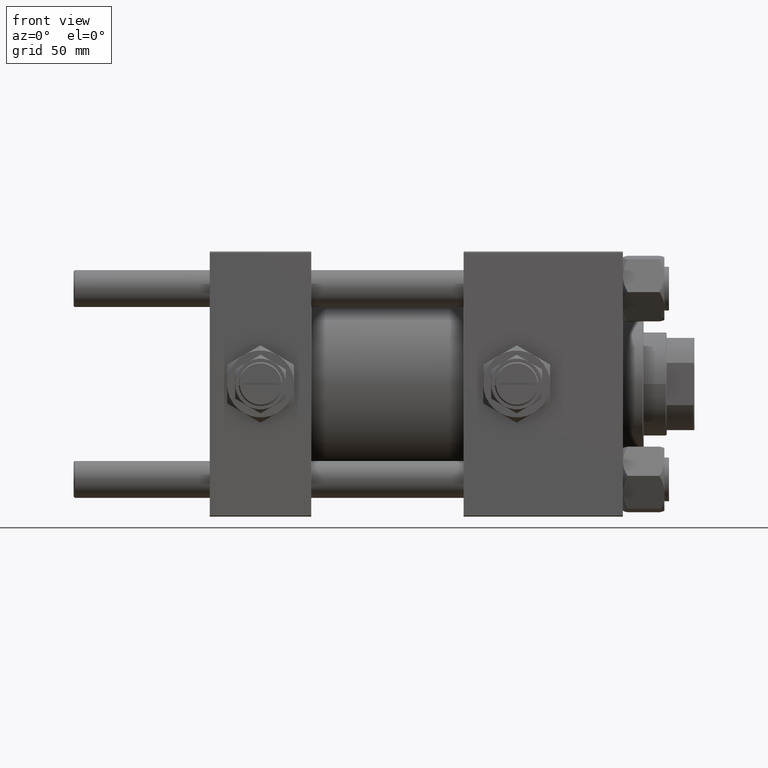
[diagram: clean part render]
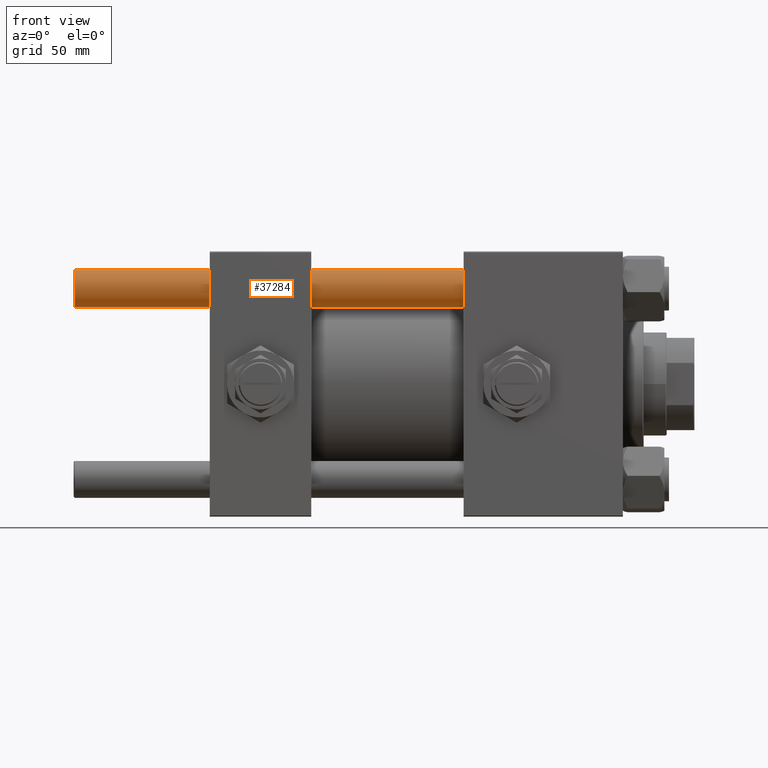
[diagram: same view with one face highlighted and labeled with its STEP entity id]
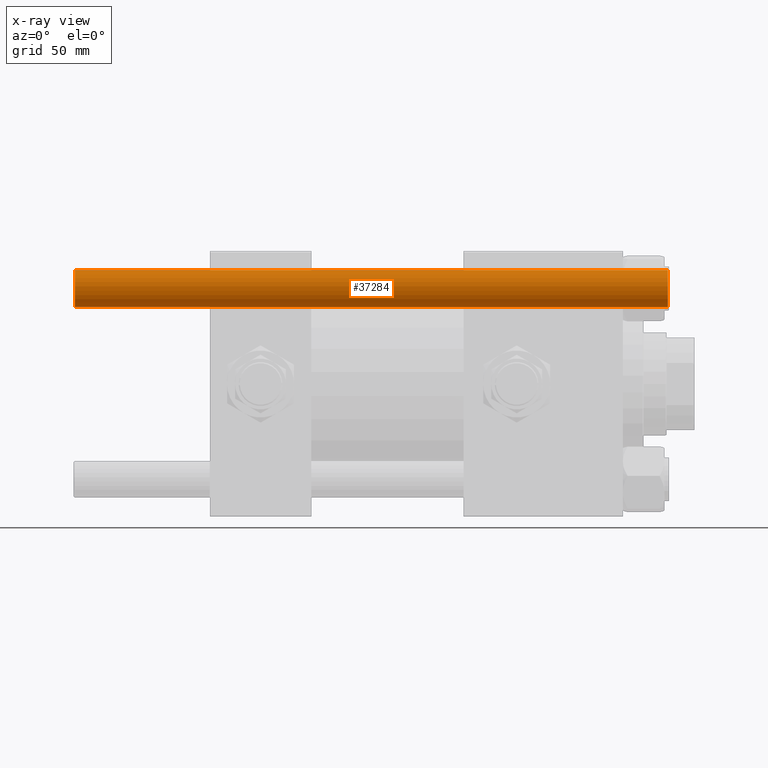
[diagram: x-ray of the same camera — body ghosted, the highlighted face saturated]
A machine part, front view. The second image highlights one B-rep face of the part: STEP entity #37284.
The next image is the same camera in x-ray: the body ghosted, the highlighted face saturated — about 0% of this face is hidden behind the body in this view.
In plain terms, the highlighted cylindrical surface (edge-blend (fillet) strip) has radius 8 mm, axis along (1, -0, 0).
Its self-contained STEP definition (entity closure, byte-faithful):
#51 = CARTESIAN_POINT ( 'NONE',  ( 8.000000000000000000, 9.797174393178825657E-16, 258.0000000000000000 ) ) ;
#449 = VERTEX_POINT ( 'NONE', #1011 ) ;
#679 = CIRCLE ( 'NONE', #45518, 8.000000000000000000 ) ;
#1011 = CARTESIAN_POINT ( 'NONE',  ( -8.000000000000000000, 0.000000000000000000, 0.4999999999999449329 ) ) ;
#3984 = DIRECTION ( 'NONE',  ( 0.000000000000000000, 0.000000000000000000, -1.000000000000000000 ) ) ;
#4682 = CIRCLE ( 'NONE', #39408, 8.000000000000000000 ) ;
#6852 = DIRECTION ( 'NONE',  ( 1.000000000000000000, 0.000000000000000000, 0.000000000000000000 ) ) ;
#8347 = VERTEX_POINT ( 'NONE', #30418 ) ;
#9004 = CARTESIAN_POINT ( 'NONE',  ( 0.000000000000000000, 0.000000000000000000, 257.4999999999999432 ) ) ;
#9964 = AXIS2_PLACEMENT_3D ( 'NONE', #49589, #50103, #20963 ) ;
#11445 = DIRECTION ( 'NONE',  ( -0.000000000000000000, -0.000000000000000000, -1.000000000000000000 ) ) ;
#12499 = LINE ( 'NONE', #51, #35887 ) ;
#18372 = LINE ( 'NONE', #34539, #29222 ) ;
#20963 = DIRECTION ( 'NONE',  ( -1.000000000000000000, 0.000000000000000000, 0.000000000000000000 ) ) ;
#25037 = EDGE_LOOP ( 'NONE', ( #35180, #36513, #44146, #30346 ) ) ;
#27449 = VERTEX_POINT ( 'NONE', #49198 ) ;
#29222 = VECTOR ( 'NONE', #50708, 1000.000000000000000 ) ;
#29332 = EDGE_CURVE ( 'NONE', #8347, #27449, #12499, .T. ) ;
#30346 = ORIENTED_EDGE ( 'NONE', *, *, #49715, .F. ) ;
#30418 = CARTESIAN_POINT ( 'NONE',  ( 8.000000000000000000, 9.797174393178825657E-16, 257.4999999999999432 ) ) ;
#31851 = EDGE_CURVE ( 'NONE', #27449, #449, #4682, .T. ) ;
#33806 = VERTEX_POINT ( 'NONE', #41697 ) ;
#34539 = CARTESIAN_POINT ( 'NONE',  ( -8.000000000000000000, 0.000000000000000000, 258.0000000000000000 ) ) ;
#35180 = ORIENTED_EDGE ( 'NONE', *, *, #38019, .T. ) ;
#35887 = VECTOR ( 'NONE', #11445, 1000.000000000000000 ) ;
#36272 = CARTESIAN_POINT ( 'NONE',  ( 0.000000000000000000, 0.000000000000000000, 0.4999999999999449329 ) ) ;
#36513 = ORIENTED_EDGE ( 'NONE', *, *, #29332, .T. ) ;
#37284 = ADVANCED_FACE ( 'NONE', ( #46135 ), #41127, .T. ) ;
#38019 = EDGE_CURVE ( 'NONE', #33806, #8347, #679, .T. ) ;
#39408 = AXIS2_PLACEMENT_3D ( 'NONE', #36272, #48209, #6852 ) ;
#41127 = CYLINDRICAL_SURFACE ( 'NONE', #9964, 8.000000000000000000 ) ;
#41357 = DIRECTION ( 'NONE',  ( 1.000000000000000000, 0.000000000000000000, 0.000000000000000000 ) ) ;
#41697 = CARTESIAN_POINT ( 'NONE',  ( -8.000000000000000000, 0.000000000000000000, 257.4999999999999432 ) ) ;
#44146 = ORIENTED_EDGE ( 'NONE', *, *, #31851, .T. ) ;
#45518 = AXIS2_PLACEMENT_3D ( 'NONE', #9004, #3984, #41357 ) ;
#46135 = FACE_OUTER_BOUND ( 'NONE', #25037, .T. ) ;
#48209 = DIRECTION ( 'NONE',  ( -0.000000000000000000, -0.000000000000000000, 1.000000000000000000 ) ) ;
#49198 = CARTESIAN_POINT ( 'NONE',  ( 8.000000000000000000, 9.797174393178825657E-16, 0.4999999999999449329 ) ) ;
#49589 = CARTESIAN_POINT ( 'NONE',  ( 0.000000000000000000, 0.000000000000000000, 258.0000000000000000 ) ) ;
#49715 = EDGE_CURVE ( 'NONE', #33806, #449, #18372, .T. ) ;
#50103 = DIRECTION ( 'NONE',  ( -0.000000000000000000, -0.000000000000000000, -1.000000000000000000 ) ) ;
#50708 = DIRECTION ( 'NONE',  ( -0.000000000000000000, -0.000000000000000000, -1.000000000000000000 ) ) ;